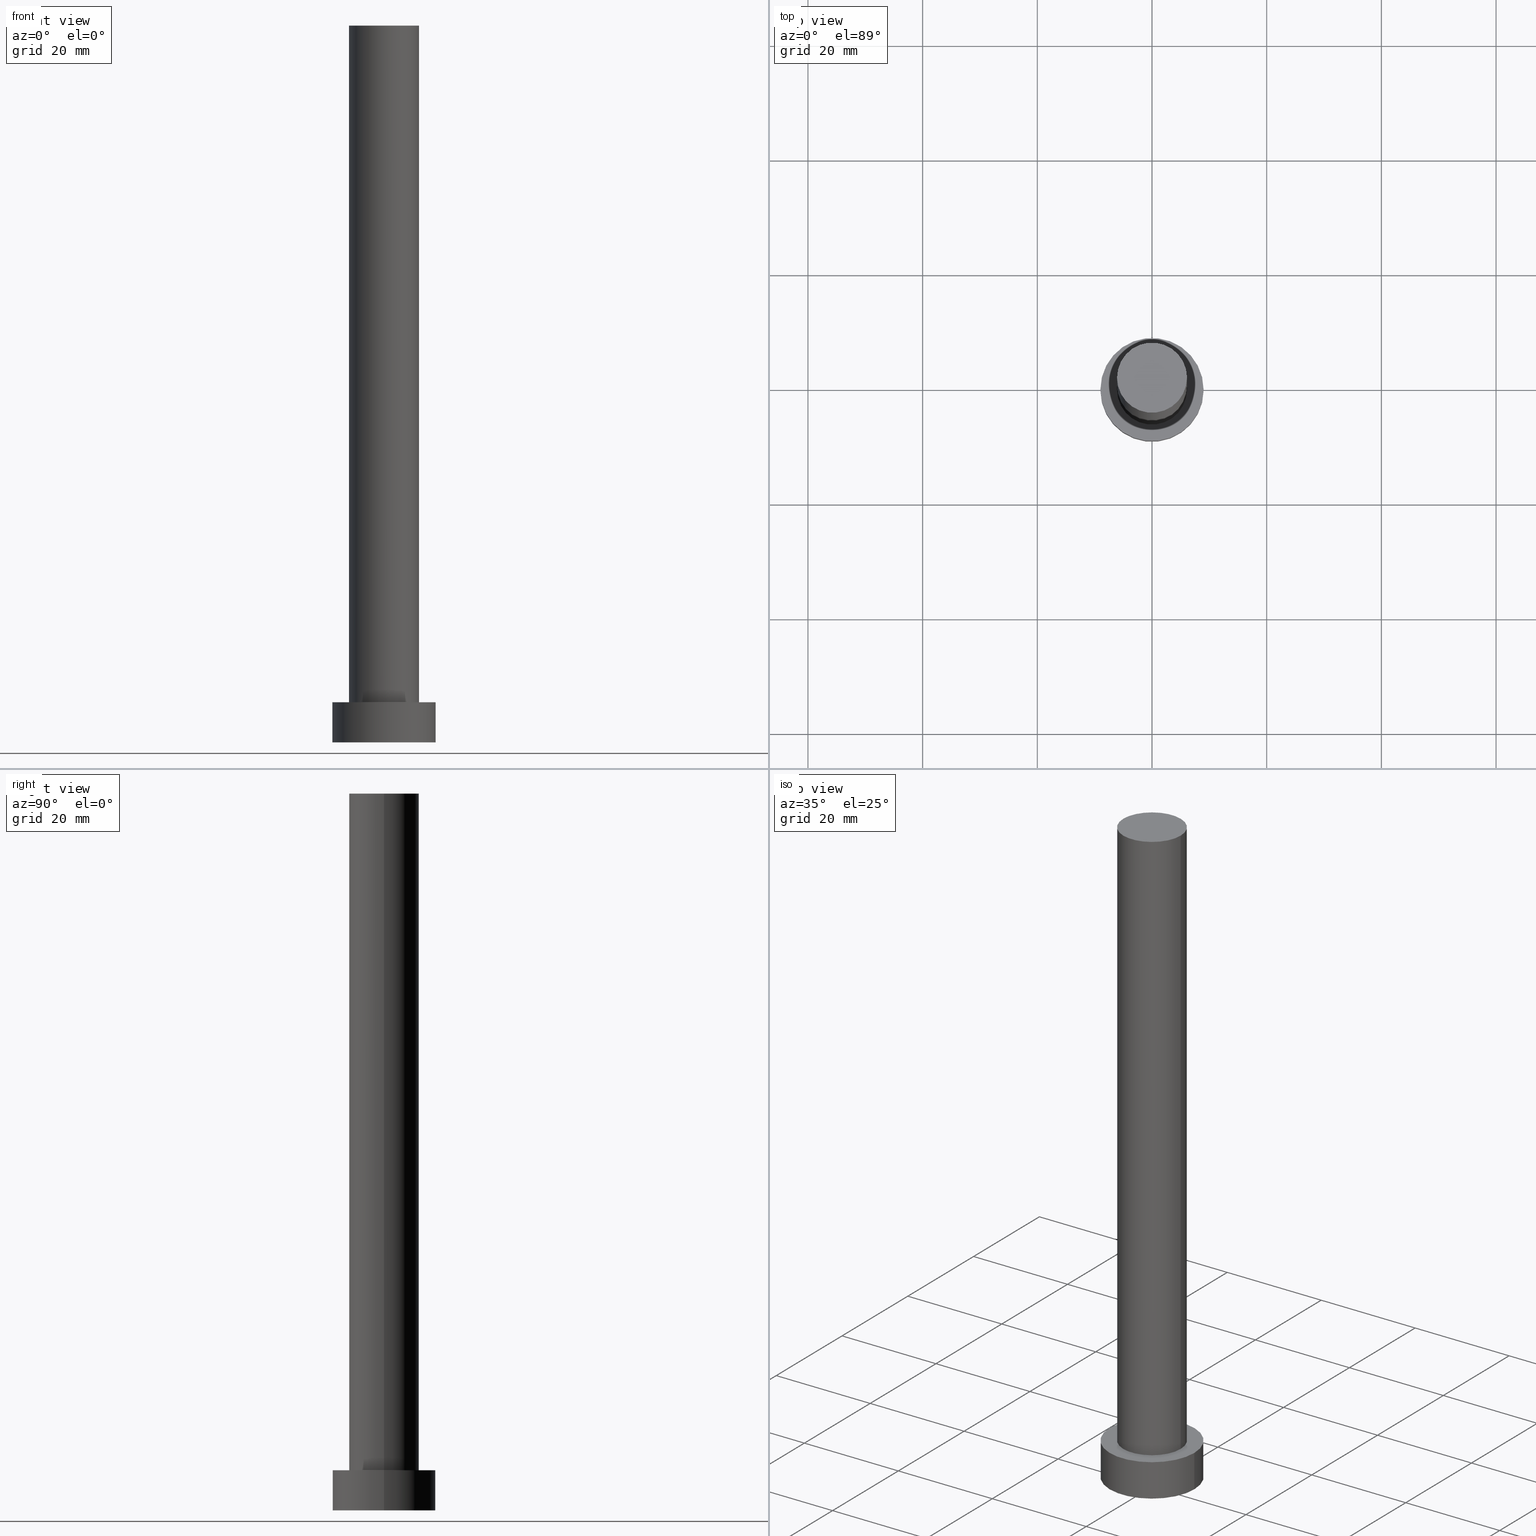
[diagram: canonical four-view strip — front | top / right | iso, engineering-drawing reading convention]
A machine part, canonical four-view strip (front | top / right | iso — engineering-drawing reading convention). The complete STEP part file that produces these views, byte-faithful:
ISO-10303-21;
HEADER;
FILE_DESCRIPTION (( 'STEP AP203' ),
    '1' );
FILE_NAME ('672d.STEP',
    '2023-02-13T11:29:55',
    ( '' ),
    ( '' ),
    'SwSTEP 2.0',
    'SolidWorks 2019',
    '' );
FILE_SCHEMA (( 'CONFIG_CONTROL_DESIGN' ));
ENDSEC;

DATA;
#1 = APPROVAL_PERSON_ORGANIZATION ( #159, #46, #222 ) ;
#2 = VERTEX_POINT ( 'NONE', #203 ) ;
#3 = SHAPE_DEFINITION_REPRESENTATION ( #220, #217 ) ;
#4 = CC_DESIGN_PERSON_AND_ORGANIZATION_ASSIGNMENT ( #72, #204, ( #192 ) ) ;
#5 = ORIENTED_EDGE ( 'NONE', *, *, #19, .T. ) ;
#6 = CALENDAR_DATE ( 2023, 13, 2 ) ;
#7 = FACE_BOUND ( 'NONE', #59, .T. ) ;
#8 = PERSON_AND_ORGANIZATION_ROLE ( 'creator' ) ;
#9 = VERTEX_POINT ( 'NONE', #216 ) ;
#10 = PRODUCT_RELATED_PRODUCT_CATEGORY ( 'detail', '', ( #213 ) ) ;
#11 = DIRECTION ( 'NONE',  ( -0.000000000000000000, -0.000000000000000000, -1.000000000000000000 ) ) ;
#12 = FACE_OUTER_BOUND ( 'NONE', #142, .T. ) ;
#13 = FACE_OUTER_BOUND ( 'NONE', #42, .T. ) ;
#14 = DIRECTION ( 'NONE',  ( 0.000000000000000000, 0.000000000000000000, 1.000000000000000000 ) ) ;
#15 = CC_DESIGN_DATE_AND_TIME_ASSIGNMENT ( #236, #180, ( #192 ) ) ;
#16 = VECTOR ( 'NONE', #65, 1000.000000000000000 ) ;
#17 = ORIENTED_EDGE ( 'NONE', *, *, #158, .T. ) ;
#18 = PERSON_AND_ORGANIZATION ( #196, #106 ) ;
#19 = EDGE_CURVE ( 'NONE', #2, #9, #249, .T. ) ;
#20 = ORIENTED_EDGE ( 'NONE', *, *, #158, .F. ) ;
#21 = AXIS2_PLACEMENT_3D ( 'NONE', #67, #230, #252 ) ;
#22 = VERTEX_POINT ( 'NONE', #172 ) ;
#23 = CALENDAR_DATE ( 2023, 13, 2 ) ;
#24 = AXIS2_PLACEMENT_3D ( 'NONE', #194, #99, #117 ) ;
#25 = CARTESIAN_POINT ( 'NONE',  ( 0.000000000000000000, 0.000000000000000000, 0.000000000000000000 ) ) ;
#26 = APPLICATION_PROTOCOL_DEFINITION ( 'international standard', 'config_control_design', 1994, #166 ) ;
#27 = DIRECTION ( 'NONE',  ( 1.000000000000000000, 0.000000000000000000, 0.000000000000000000 ) ) ;
#28 = CARTESIAN_POINT ( 'NONE',  ( 6.099999999999999645, 7.470345474798854293E-16, 7.000000000000000000 ) ) ;
#29 = CYLINDRICAL_SURFACE ( 'NONE', #128, 9.000000000000000000 ) ;
#30 = CARTESIAN_POINT ( 'NONE',  ( 0.000000000000000000, 0.000000000000000000, 7.000000000000000000 ) ) ;
#31 = DIRECTION ( 'NONE',  ( -0.000000000000000000, -0.000000000000000000, -1.000000000000000000 ) ) ;
#32 = EDGE_CURVE ( 'NONE', #238, #139, #147, .T. ) ;
#33 = LOCAL_TIME ( 12, 29, 55.00000000000000000, #43 ) ;
#34 = EDGE_LOOP ( 'NONE', ( #20, #221, #58, #179 ) ) ;
#35 = ADVANCED_FACE ( 'NONE', ( #7, #155 ), #182, .T. ) ;
#36 = MECHANICAL_CONTEXT ( 'NONE', #166, 'mechanical' ) ;
#37 = VERTEX_POINT ( 'NONE', #28 ) ;
#38 = PERSON_AND_ORGANIZATION ( #196, #106 ) ;
#39 = EDGE_LOOP ( 'NONE', ( #83, #138 ) ) ;
#40 = ORIENTED_EDGE ( 'NONE', *, *, #50, .F. ) ;
#41 = SECURITY_CLASSIFICATION_LEVEL ( 'unclassified' ) ;
#42 = EDGE_LOOP ( 'NONE', ( #136, #119 ) ) ;
#43 = COORDINATED_UNIVERSAL_TIME_OFFSET ( 1, 0, .AHEAD. ) ;
#44 = DIRECTION ( 'NONE',  ( 1.000000000000000000, 0.000000000000000000, -0.000000000000000000 ) ) ;
#45 = CARTESIAN_POINT ( 'NONE',  ( 0.000000000000000000, 0.000000000000000000, 125.0000000000000000 ) ) ;
#46 = APPROVAL ( #115, 'NEUR�EN�' ) ;
#47 = CYLINDRICAL_SURFACE ( 'NONE', #237, 6.099999999999999645 ) ;
#48 = MANIFOLD_SOLID_BREP ( 'P�idat vysunut�m3', #53 ) ;
#49 = CARTESIAN_POINT ( 'NONE',  ( 0.000000000000000000, 0.000000000000000000, 125.0000000000000000 ) ) ;
#50 = EDGE_CURVE ( 'NONE', #37, #122, #54, .T. ) ;
#51 = LINE ( 'NONE', #105, #243 ) ;
#52 = DIRECTION ( 'NONE',  ( 1.000000000000000000, 0.000000000000000000, -0.000000000000000000 ) ) ;
#53 = CLOSED_SHELL ( 'NONE', ( #207, #193, #137, #35, #171, #132, #233 ) ) ;
#54 = CIRCLE ( 'NONE', #124, 6.099999999999999645 ) ;
#55 = EDGE_CURVE ( 'NONE', #2, #122, #164, .T. ) ;
#56 = EDGE_LOOP ( 'NONE', ( #5, #79 ) ) ;
#57 =( NAMED_UNIT ( * ) SI_UNIT ( $, .STERADIAN. ) SOLID_ANGLE_UNIT ( ) );
#58 = ORIENTED_EDGE ( 'NONE', *, *, #55, .T. ) ;
#59 = EDGE_LOOP ( 'NONE', ( #241, #40 ) ) ;
#60 = APPROVAL_ROLE ( '' ) ;
#61 = LOCAL_TIME ( 12, 29, 55.00000000000000000, #153 ) ;
#62 = DIRECTION ( 'NONE',  ( 0.000000000000000000, 0.000000000000000000, 1.000000000000000000 ) ) ;
#63 = CYLINDRICAL_SURFACE ( 'NONE', #92, 6.099999999999999645 ) ;
#64 = CC_DESIGN_DATE_AND_TIME_ASSIGNMENT ( #245, #101, ( #141 ) ) ;
#65 = DIRECTION ( 'NONE',  ( -0.000000000000000000, -0.000000000000000000, -1.000000000000000000 ) ) ;
#66 = DIRECTION ( 'NONE',  ( 0.000000000000000000, 0.000000000000000000, 1.000000000000000000 ) ) ;
#67 = CARTESIAN_POINT ( 'NONE',  ( 0.000000000000000000, 0.000000000000000000, 7.000000000000000000 ) ) ;
#68 = CC_DESIGN_PERSON_AND_ORGANIZATION_ASSIGNMENT ( #38, #177, ( #149 ) ) ;
#69 = DIRECTION ( 'NONE',  ( 0.000000000000000000, 0.000000000000000000, 1.000000000000000000 ) ) ;
#70 = CC_DESIGN_APPROVAL ( #112, ( #192 ) ) ;
#71 = DIRECTION ( 'NONE',  ( 1.000000000000000000, 0.000000000000000000, 0.000000000000000000 ) ) ;
#72 = PERSON_AND_ORGANIZATION ( #196, #106 ) ;
#73 = DIRECTION ( 'NONE',  ( 1.000000000000000000, 0.000000000000000000, 0.000000000000000000 ) ) ;
#74 = COORDINATED_UNIVERSAL_TIME_OFFSET ( 1, 0, .AHEAD. ) ;
#75 = UNCERTAINTY_MEASURE_WITH_UNIT (LENGTH_MEASURE( 1.000000000000000082E-05 ), #109, 'distance_accuracy_value', 'NONE');
#76 = VERTEX_POINT ( 'NONE', #108 ) ;
#77 = PERSON_AND_ORGANIZATION ( #196, #106 ) ;
#78 = APPROVAL_STATUS ( 'not_yet_approved' ) ;
#79 = ORIENTED_EDGE ( 'NONE', *, *, #229, .T. ) ;
#80 = CIRCLE ( 'NONE', #199, 6.099999999999999645 ) ;
#81 = APPROVAL_STATUS ( 'not_yet_approved' ) ;
#82 = APPROVAL_PERSON_ORGANIZATION ( #77, #112, #157 ) ;
#83 = ORIENTED_EDGE ( 'NONE', *, *, #210, .T. ) ;
#84 = FACE_OUTER_BOUND ( 'NONE', #56, .T. ) ;
#85 = PLANE ( 'NONE',  #209 ) ;
#86 = CARTESIAN_POINT ( 'NONE',  ( 0.000000000000000000, 0.000000000000000000, 0.000000000000000000 ) ) ;
#87 = DIRECTION ( 'NONE',  ( 1.000000000000000000, 0.000000000000000000, 0.000000000000000000 ) ) ;
#88 = DIRECTION ( 'NONE',  ( 0.000000000000000000, 0.000000000000000000, 1.000000000000000000 ) ) ;
#89 = CIRCLE ( 'NONE', #191, 9.000000000000000000 ) ;
#90 = LOCAL_TIME ( 12, 29, 55.00000000000000000, #74 ) ;
#91 = EDGE_CURVE ( 'NONE', #139, #238, #224, .T. ) ;
#92 = AXIS2_PLACEMENT_3D ( 'NONE', #45, #11, #250 ) ;
#93 = CC_DESIGN_PERSON_AND_ORGANIZATION_ASSIGNMENT ( #202, #140, ( #149 ) ) ;
#94 = APPLICATION_CONTEXT ( 'configuration controlled 3d designs of mechanical parts and assemblies' ) ;
#95 = EDGE_LOOP ( 'NONE', ( #97, #17, #114, #160 ) ) ;
#96 = DATE_AND_TIME ( #242, #226 ) ;
#97 = ORIENTED_EDGE ( 'NONE', *, *, #229, .F. ) ;
#98 = APPROVAL_DATE_TIME ( #239, #183 ) ;
#99 = DIRECTION ( 'NONE',  ( 0.000000000000000000, 0.000000000000000000, 1.000000000000000000 ) ) ;
#100 = DATE_AND_TIME ( #23, #175 ) ;
#101 = DATE_TIME_ROLE ( 'creation_date' ) ;
#102 = CALENDAR_DATE ( 2023, 13, 2 ) ;
#103 = DIRECTION ( 'NONE',  ( 1.000000000000000000, 0.000000000000000000, 0.000000000000000000 ) ) ;
#104 = CARTESIAN_POINT ( 'NONE',  ( -6.099999999999999645, 0.000000000000000000, 7.000000000000000000 ) ) ;
#105 = CARTESIAN_POINT ( 'NONE',  ( 9.000000000000000000, 1.102182119232617714E-15, 7.000000000000000000 ) ) ;
#106 = ORGANIZATION ( 'NEUR�EN�', 'NEUR�EN�', '' ) ;
#107 = DIRECTION ( 'NONE',  ( 0.000000000000000000, 0.000000000000000000, 1.000000000000000000 ) ) ;
#108 = CARTESIAN_POINT ( 'NONE',  ( -9.000000000000000000, 0.000000000000000000, 7.000000000000000000 ) ) ;
#109 =( LENGTH_UNIT ( ) NAMED_UNIT ( * ) SI_UNIT ( .MILLI., .METRE. ) );
#110 = CC_DESIGN_PERSON_AND_ORGANIZATION_ASSIGNMENT ( #18, #8, ( #141 ) ) ;
#111 = AXIS2_PLACEMENT_3D ( 'NONE', #131, #88, #71 ) ;
#112 = APPROVAL ( #81, 'NEUR�EN�' ) ;
#113 = ORIENTED_EDGE ( 'NONE', *, *, #150, .F. ) ;
#114 = ORIENTED_EDGE ( 'NONE', *, *, #50, .T. ) ;
#115 = APPROVAL_STATUS ( 'not_yet_approved' ) ;
#116 = CC_DESIGN_SECURITY_CLASSIFICATION ( #192, ( #149 ) ) ;
#117 = DIRECTION ( 'NONE',  ( 1.000000000000000000, 0.000000000000000000, 0.000000000000000000 ) ) ;
#118 = PERSON_AND_ORGANIZATION_ROLE ( 'design_owner' ) ;
#119 = ORIENTED_EDGE ( 'NONE', *, *, #32, .F. ) ;
#120 = DIRECTION ( 'NONE',  ( 1.000000000000000000, 0.000000000000000000, 0.000000000000000000 ) ) ;
#121 = EDGE_CURVE ( 'NONE', #22, #76, #133, .T. ) ;
#122 = VERTEX_POINT ( 'NONE', #104 ) ;
#123 = CALENDAR_DATE ( 2023, 13, 2 ) ;
#124 = AXIS2_PLACEMENT_3D ( 'NONE', #144, #69, #206 ) ;
#125 = DIRECTION ( 'NONE',  ( 0.000000000000000000, 0.000000000000000000, 1.000000000000000000 ) ) ;
#126 = CARTESIAN_POINT ( 'NONE',  ( -6.099999999999999645, 0.000000000000000000, 125.0000000000000000 ) ) ;
#127 = CARTESIAN_POINT ( 'NONE',  ( 0.000000000000000000, 0.000000000000000000, 7.000000000000000000 ) ) ;
#128 = AXIS2_PLACEMENT_3D ( 'NONE', #231, #251, #162 ) ;
#129 = DIRECTION ( 'NONE',  ( -0.000000000000000000, -0.000000000000000000, -1.000000000000000000 ) ) ;
#130 = FACE_OUTER_BOUND ( 'NONE', #95, .T. ) ;
#131 = CARTESIAN_POINT ( 'NONE',  ( 0.000000000000000000, 0.000000000000000000, 7.000000000000000000 ) ) ;
#132 = ADVANCED_FACE ( 'NONE', ( #208 ), #63, .T. ) ;
#133 = CIRCLE ( 'NONE', #197, 9.000000000000000000 ) ;
#134 = VECTOR ( 'NONE', #223, 1000.000000000000000 ) ;
#135 = ORIENTED_EDGE ( 'NONE', *, *, #188, .T. ) ;
#136 = ORIENTED_EDGE ( 'NONE', *, *, #91, .F. ) ;
#137 = ADVANCED_FACE ( 'NONE', ( #12 ), #29, .T. ) ;
#138 = ORIENTED_EDGE ( 'NONE', *, *, #121, .T. ) ;
#139 = VERTEX_POINT ( 'NONE', #247 ) ;
#140 = PERSON_AND_ORGANIZATION_ROLE ( 'design_supplier' ) ;
#141 = PRODUCT_DEFINITION ( 'NEZN�M�', '', #149, #240 ) ;
#142 = EDGE_LOOP ( 'NONE', ( #113, #235, #135, #176 ) ) ;
#143 = DIRECTION ( 'NONE',  ( -0.000000000000000000, -0.000000000000000000, -1.000000000000000000 ) ) ;
#144 = CARTESIAN_POINT ( 'NONE',  ( 0.000000000000000000, 0.000000000000000000, 7.000000000000000000 ) ) ;
#145 = LINE ( 'NONE', #146, #134 ) ;
#146 = CARTESIAN_POINT ( 'NONE',  ( -9.000000000000000000, 0.000000000000000000, 7.000000000000000000 ) ) ;
#147 = CIRCLE ( 'NONE', #152, 9.000000000000000000 ) ;
#148 = CARTESIAN_POINT ( 'NONE',  ( 0.000000000000000000, 0.000000000000000000, 7.000000000000000000 ) ) ;
#149 = PRODUCT_DEFINITION_FORMATION_WITH_SPECIFIED_SOURCE ( 'LIBOVOLN�', '', #213, .NOT_KNOWN. ) ;
#150 = EDGE_CURVE ( 'NONE', #22, #238, #51, .T. ) ;
#151 = CARTESIAN_POINT ( 'NONE',  ( 0.000000000000000000, 0.000000000000000000, 125.0000000000000000 ) ) ;
#152 = AXIS2_PLACEMENT_3D ( 'NONE', #25, #178, #73 ) ;
#153 = COORDINATED_UNIVERSAL_TIME_OFFSET ( 1, 0, .AHEAD. ) ;
#154 = CC_DESIGN_PERSON_AND_ORGANIZATION_ASSIGNMENT ( #181, #118, ( #213 ) ) ;
#155 = FACE_OUTER_BOUND ( 'NONE', #39, .T. ) ;
#156 = CARTESIAN_POINT ( 'NONE',  ( 0.000000000000000000, 0.000000000000000000, 0.000000000000000000 ) ) ;
#157 = APPROVAL_ROLE ( '' ) ;
#158 = EDGE_CURVE ( 'NONE', #9, #37, #227, .T. ) ;
#159 = PERSON_AND_ORGANIZATION ( #196, #106 ) ;
#160 = ORIENTED_EDGE ( 'NONE', *, *, #55, .F. ) ;
#161 = APPROVAL_DATE_TIME ( #100, #46 ) ;
#162 = DIRECTION ( 'NONE',  ( -1.000000000000000000, 0.000000000000000000, 0.000000000000000000 ) ) ;
#163 =( GEOMETRIC_REPRESENTATION_CONTEXT ( 3 ) GLOBAL_UNCERTAINTY_ASSIGNED_CONTEXT ( ( #75 ) ) GLOBAL_UNIT_ASSIGNED_CONTEXT ( ( #109, #201, #57 ) ) REPRESENTATION_CONTEXT ( 'NONE', 'WORKASPACE' ) );
#164 = LINE ( 'NONE', #126, #205 ) ;
#165 = DIRECTION ( 'NONE',  ( 1.000000000000000000, 0.000000000000000000, -0.000000000000000000 ) ) ;
#166 = APPLICATION_CONTEXT ( 'configuration controlled 3d designs of mechanical parts and assemblies' ) ;
#167 = CARTESIAN_POINT ( 'NONE',  ( 0.000000000000000000, 0.000000000000000000, 125.0000000000000000 ) ) ;
#168 = AXIS2_PLACEMENT_3D ( 'NONE', #148, #184, #44 ) ;
#169 = CC_DESIGN_APPROVAL ( #46, ( #141 ) ) ;
#170 = AXIS2_PLACEMENT_3D ( 'NONE', #189, #211, #27 ) ;
#171 = ADVANCED_FACE ( 'NONE', ( #13 ), #85, .F. ) ;
#172 = CARTESIAN_POINT ( 'NONE',  ( 9.000000000000000000, 1.102182119232617714E-15, 7.000000000000000000 ) ) ;
#173 = APPROVAL_DATE_TIME ( #96, #112 ) ;
#174 = AXIS2_PLACEMENT_3D ( 'NONE', #151, #232, #52 ) ;
#175 = LOCAL_TIME ( 12, 29, 55.00000000000000000, #219 ) ;
#176 = ORIENTED_EDGE ( 'NONE', *, *, #91, .T. ) ;
#177 = PERSON_AND_ORGANIZATION_ROLE ( 'creator' ) ;
#178 = DIRECTION ( 'NONE',  ( 0.000000000000000000, 0.000000000000000000, 1.000000000000000000 ) ) ;
#179 = ORIENTED_EDGE ( 'NONE', *, *, #255, .T. ) ;
#180 = DATE_TIME_ROLE ( 'classification_date' ) ;
#181 = PERSON_AND_ORGANIZATION ( #196, #106 ) ;
#182 = PLANE ( 'NONE',  #168 ) ;
#183 = APPROVAL ( #78, 'NEUR�EN�' ) ;
#184 = DIRECTION ( 'NONE',  ( 0.000000000000000000, 0.000000000000000000, 1.000000000000000000 ) ) ;
#185 = AXIS2_PLACEMENT_3D ( 'NONE', #156, #62, #120 ) ;
#186 = CARTESIAN_POINT ( 'NONE',  ( 6.099999999999999645, 7.470345474798854293E-16, 125.0000000000000000 ) ) ;
#187 = CYLINDRICAL_SURFACE ( 'NONE', #21, 9.000000000000000000 ) ;
#188 = EDGE_CURVE ( 'NONE', #76, #139, #145, .T. ) ;
#189 = CARTESIAN_POINT ( 'NONE',  ( 0.000000000000000000, 0.000000000000000000, 0.000000000000000000 ) ) ;
#190 = CARTESIAN_POINT ( 'NONE',  ( 9.000000000000000000, 1.102182119232617714E-15, 0.000000000000000000 ) ) ;
#191 = AXIS2_PLACEMENT_3D ( 'NONE', #127, #14, #87 ) ;
#192 = SECURITY_CLASSIFICATION ( '', '', #41 ) ;
#193 = ADVANCED_FACE ( 'NONE', ( #228 ), #187, .T. ) ;
#194 = CARTESIAN_POINT ( 'NONE',  ( 0.000000000000000000, 0.000000000000000000, 125.0000000000000000 ) ) ;
#195 = APPLICATION_PROTOCOL_DEFINITION ( 'international standard', 'config_control_design', 1994, #94 ) ;
#196 = PERSON ( 'NEUR�EN�', 'NEUR�EN�', 'NEUR�EN�', ('NEUR�EN�'), ('NEUR�EN�'), ('NEUR�EN�') ) ;
#197 = AXIS2_PLACEMENT_3D ( 'NONE', #30, #107, #248 ) ;
#198 = ORIENTED_EDGE ( 'NONE', *, *, #188, .F. ) ;
#199 = AXIS2_PLACEMENT_3D ( 'NONE', #167, #125, #103 ) ;
#200 = ORIENTED_EDGE ( 'NONE', *, *, #121, .F. ) ;
#201 =( NAMED_UNIT ( * ) PLANE_ANGLE_UNIT ( ) SI_UNIT ( $, .RADIAN. ) );
#202 = PERSON_AND_ORGANIZATION ( #196, #106 ) ;
#203 = CARTESIAN_POINT ( 'NONE',  ( -6.099999999999999645, 0.000000000000000000, 125.0000000000000000 ) ) ;
#204 = PERSON_AND_ORGANIZATION_ROLE ( 'classification_officer' ) ;
#205 = VECTOR ( 'NONE', #31, 1000.000000000000000 ) ;
#206 = DIRECTION ( 'NONE',  ( 1.000000000000000000, 0.000000000000000000, 0.000000000000000000 ) ) ;
#207 = ADVANCED_FACE ( 'NONE', ( #130 ), #47, .T. ) ;
#208 = FACE_OUTER_BOUND ( 'NONE', #34, .T. ) ;
#209 = AXIS2_PLACEMENT_3D ( 'NONE', #86, #66, #165 ) ;
#210 = EDGE_CURVE ( 'NONE', #76, #22, #89, .T. ) ;
#211 = DIRECTION ( 'NONE',  ( 0.000000000000000000, 0.000000000000000000, 1.000000000000000000 ) ) ;
#212 = DIRECTION ( 'NONE',  ( -1.000000000000000000, 0.000000000000000000, 0.000000000000000000 ) ) ;
#213 = PRODUCT ( '672d', '672d', '', ( #36 ) ) ;
#214 = ORIENTED_EDGE ( 'NONE', *, *, #32, .T. ) ;
#215 = PERSON_AND_ORGANIZATION ( #196, #106 ) ;
#216 = CARTESIAN_POINT ( 'NONE',  ( 6.099999999999999645, 7.470345474798854293E-16, 125.0000000000000000 ) ) ;
#217 = ADVANCED_BREP_SHAPE_REPRESENTATION ( '672d', ( #48, #185 ), #163 ) ;
#218 = EDGE_LOOP ( 'NONE', ( #200, #244, #214, #198 ) ) ;
#219 = COORDINATED_UNIVERSAL_TIME_OFFSET ( 1, 0, .AHEAD. ) ;
#220 = PRODUCT_DEFINITION_SHAPE ( 'NONE', 'NONE',  #141 ) ;
#221 = ORIENTED_EDGE ( 'NONE', *, *, #19, .F. ) ;
#222 = APPROVAL_ROLE ( '' ) ;
#223 = DIRECTION ( 'NONE',  ( -0.000000000000000000, -0.000000000000000000, -1.000000000000000000 ) ) ;
#224 = CIRCLE ( 'NONE', #170, 9.000000000000000000 ) ;
#225 = CIRCLE ( 'NONE', #111, 6.099999999999999645 ) ;
#226 = LOCAL_TIME ( 12, 29, 55.00000000000000000, #246 ) ;
#227 = LINE ( 'NONE', #186, #16 ) ;
#228 = FACE_OUTER_BOUND ( 'NONE', #218, .T. ) ;
#229 = EDGE_CURVE ( 'NONE', #9, #2, #80, .T. ) ;
#230 = DIRECTION ( 'NONE',  ( -0.000000000000000000, -0.000000000000000000, -1.000000000000000000 ) ) ;
#231 = CARTESIAN_POINT ( 'NONE',  ( 0.000000000000000000, 0.000000000000000000, 7.000000000000000000 ) ) ;
#232 = DIRECTION ( 'NONE',  ( 0.000000000000000000, 0.000000000000000000, 1.000000000000000000 ) ) ;
#233 = ADVANCED_FACE ( 'NONE', ( #84 ), #253, .T. ) ;
#234 = CC_DESIGN_APPROVAL ( #183, ( #149 ) ) ;
#235 = ORIENTED_EDGE ( 'NONE', *, *, #210, .F. ) ;
#236 = DATE_AND_TIME ( #6, #61 ) ;
#237 = AXIS2_PLACEMENT_3D ( 'NONE', #49, #129, #212 ) ;
#238 = VERTEX_POINT ( 'NONE', #190 ) ;
#239 = DATE_AND_TIME ( #123, #33 ) ;
#240 = DESIGN_CONTEXT ( 'detailed design', #94, 'design' ) ;
#241 = ORIENTED_EDGE ( 'NONE', *, *, #255, .F. ) ;
#242 = CALENDAR_DATE ( 2023, 13, 2 ) ;
#243 = VECTOR ( 'NONE', #143, 1000.000000000000000 ) ;
#244 = ORIENTED_EDGE ( 'NONE', *, *, #150, .T. ) ;
#245 = DATE_AND_TIME ( #102, #90 ) ;
#246 = COORDINATED_UNIVERSAL_TIME_OFFSET ( 1, 0, .AHEAD. ) ;
#247 = CARTESIAN_POINT ( 'NONE',  ( -9.000000000000000000, 0.000000000000000000, 0.000000000000000000 ) ) ;
#248 = DIRECTION ( 'NONE',  ( 1.000000000000000000, 0.000000000000000000, 0.000000000000000000 ) ) ;
#249 = CIRCLE ( 'NONE', #24, 6.099999999999999645 ) ;
#250 = DIRECTION ( 'NONE',  ( -1.000000000000000000, 0.000000000000000000, 0.000000000000000000 ) ) ;
#251 = DIRECTION ( 'NONE',  ( -0.000000000000000000, -0.000000000000000000, -1.000000000000000000 ) ) ;
#252 = DIRECTION ( 'NONE',  ( -1.000000000000000000, 0.000000000000000000, 0.000000000000000000 ) ) ;
#253 = PLANE ( 'NONE',  #174 ) ;
#254 = APPROVAL_PERSON_ORGANIZATION ( #215, #183, #60 ) ;
#255 = EDGE_CURVE ( 'NONE', #122, #37, #225, .T. ) ;
ENDSEC;
END-ISO-10303-21;
